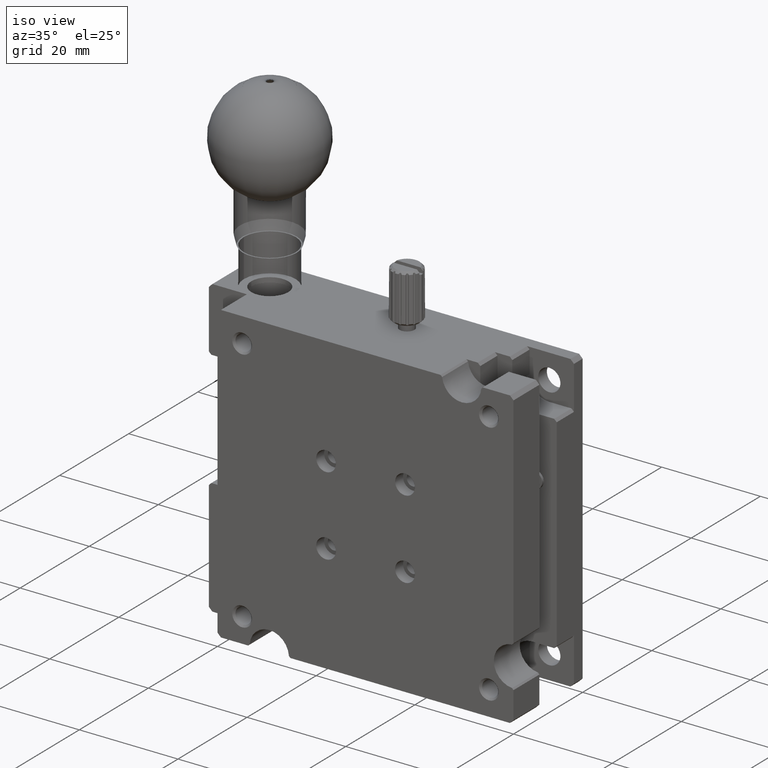
[diagram: clean part render]
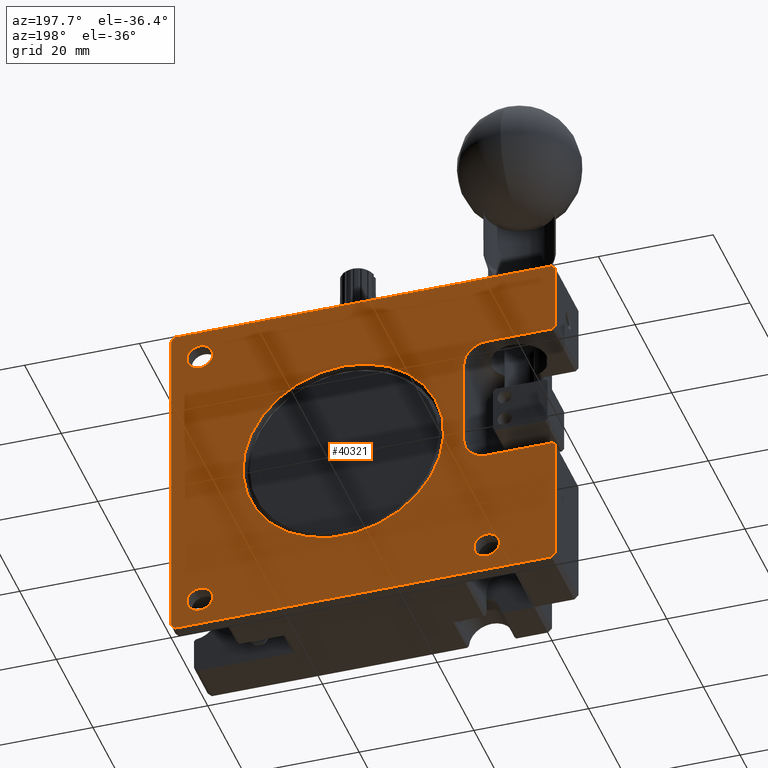
[diagram: tour spotlight — one face highlighted and labeled with its STEP entity id]
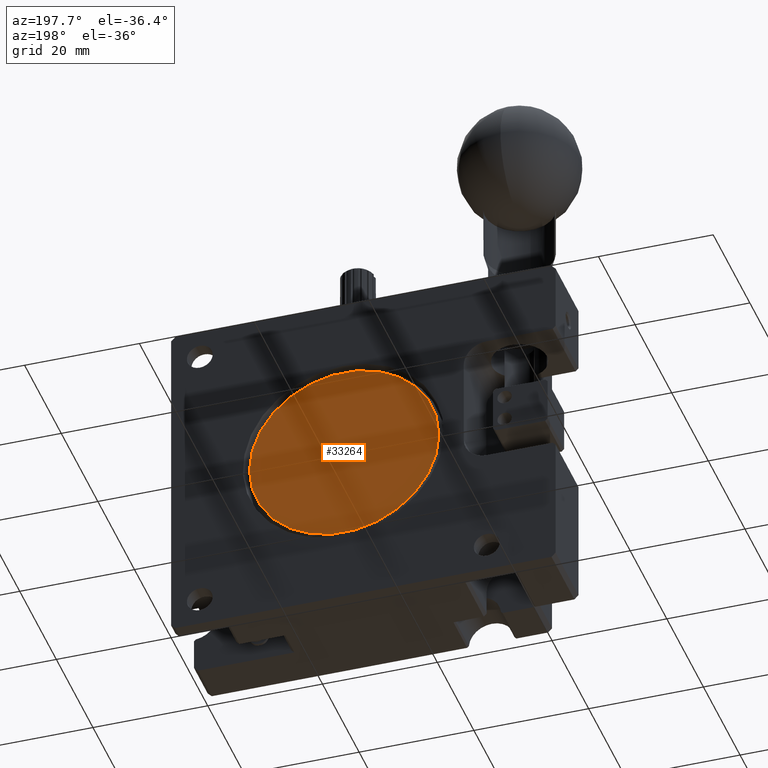
[diagram: tour spotlight — one face highlighted and labeled with its STEP entity id]
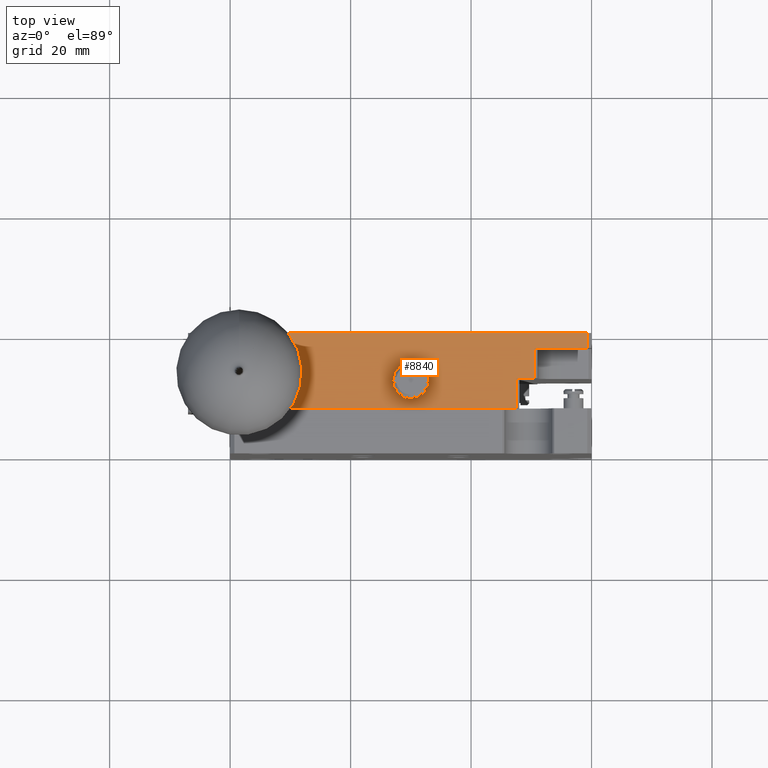
[diagram: tour spotlight — one face highlighted and labeled with its STEP entity id]
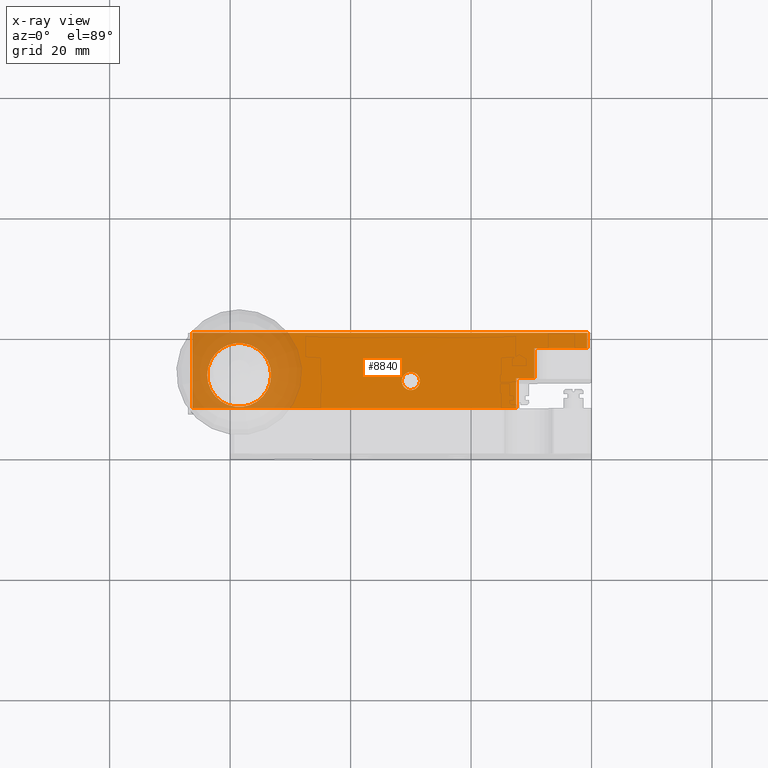
[diagram: x-ray of the same camera — body ghosted, this tour face saturated]
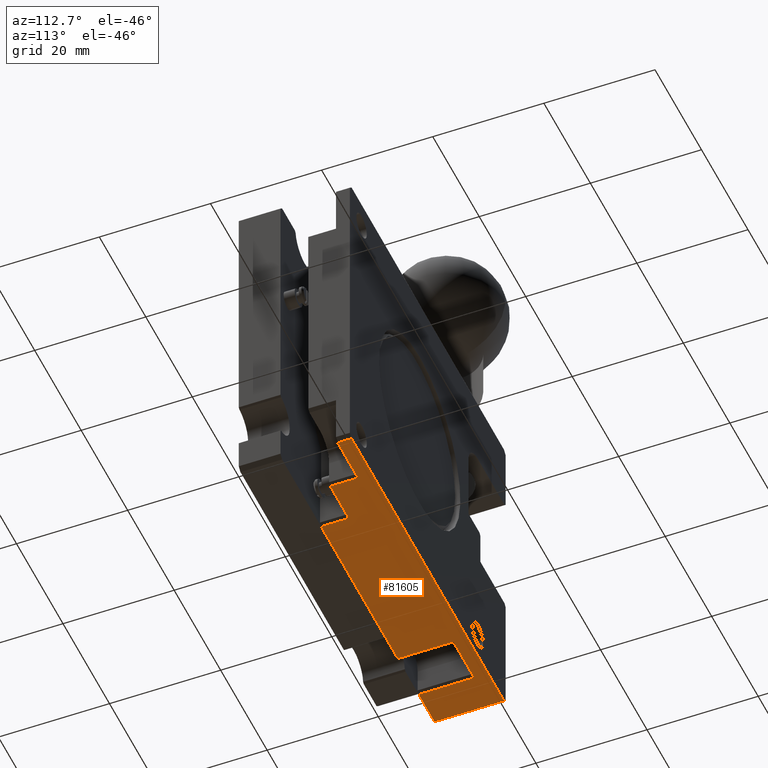
[diagram: tour spotlight — one face highlighted and labeled with its STEP entity id]
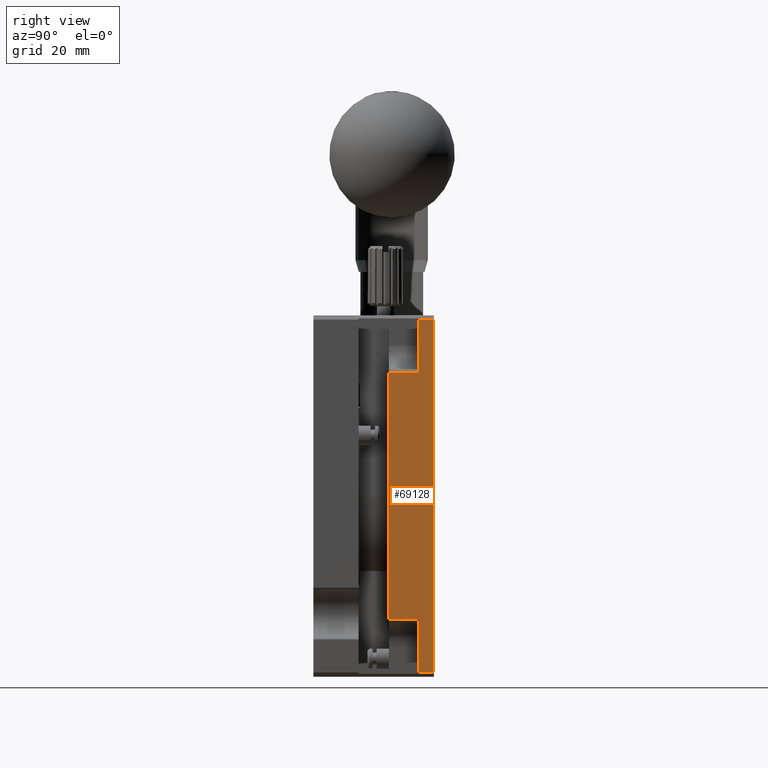
[diagram: tour spotlight — one face highlighted and labeled with its STEP entity id]
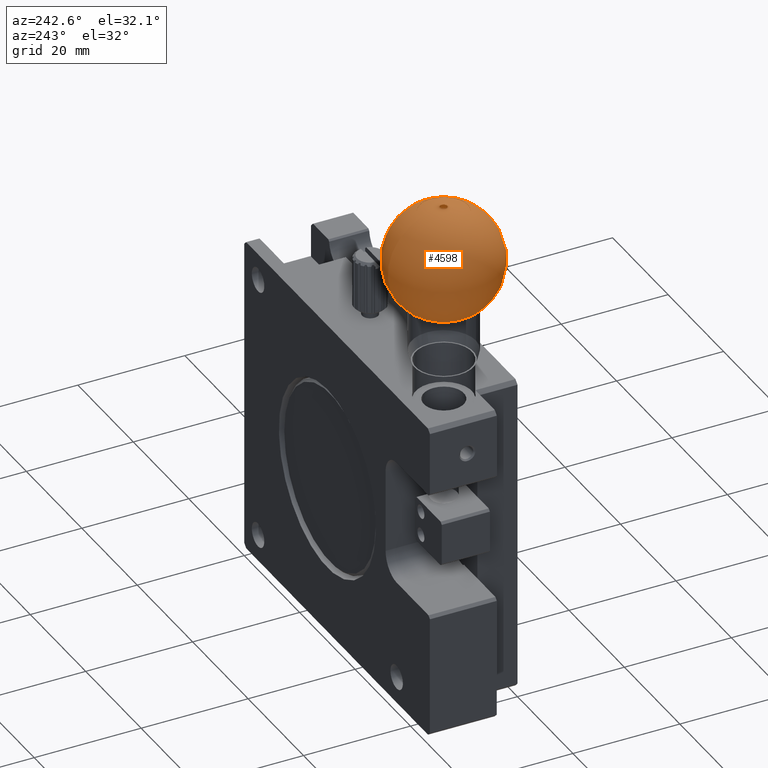
[diagram: tour spotlight — one face highlighted and labeled with its STEP entity id]
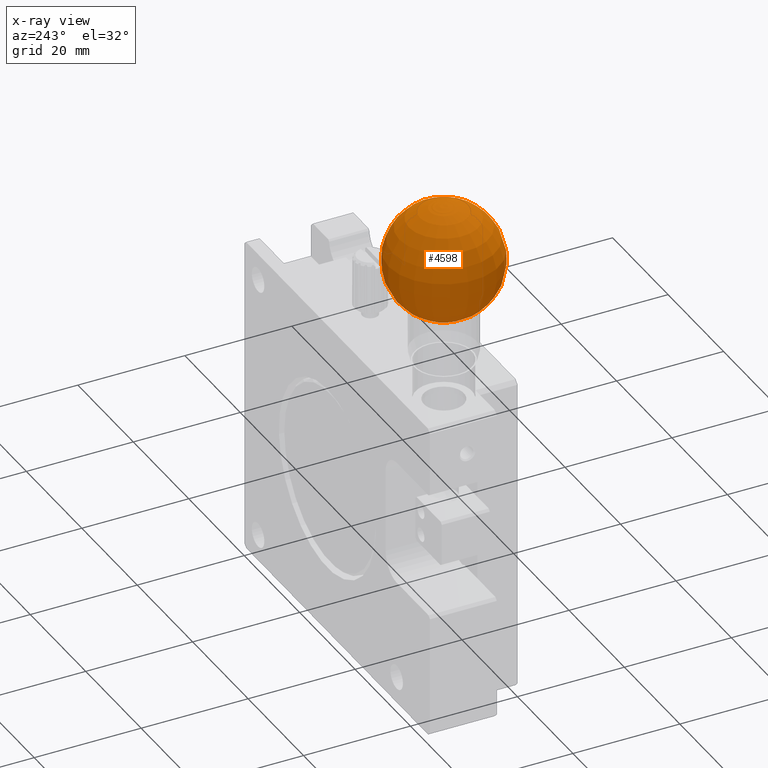
[diagram: x-ray of the same camera — body ghosted, this tour face saturated]
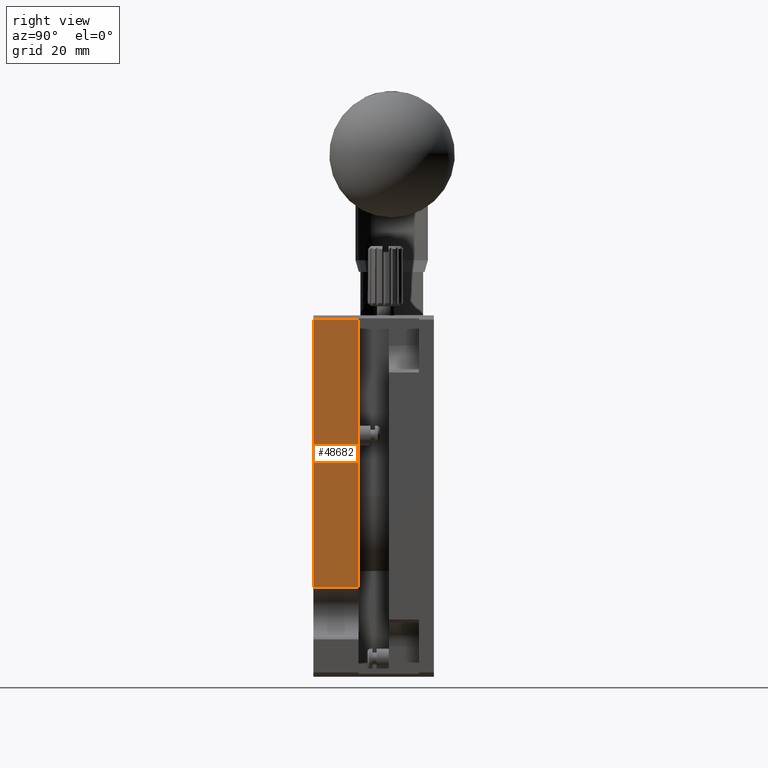
[diagram: tour spotlight — one face highlighted and labeled with its STEP entity id]
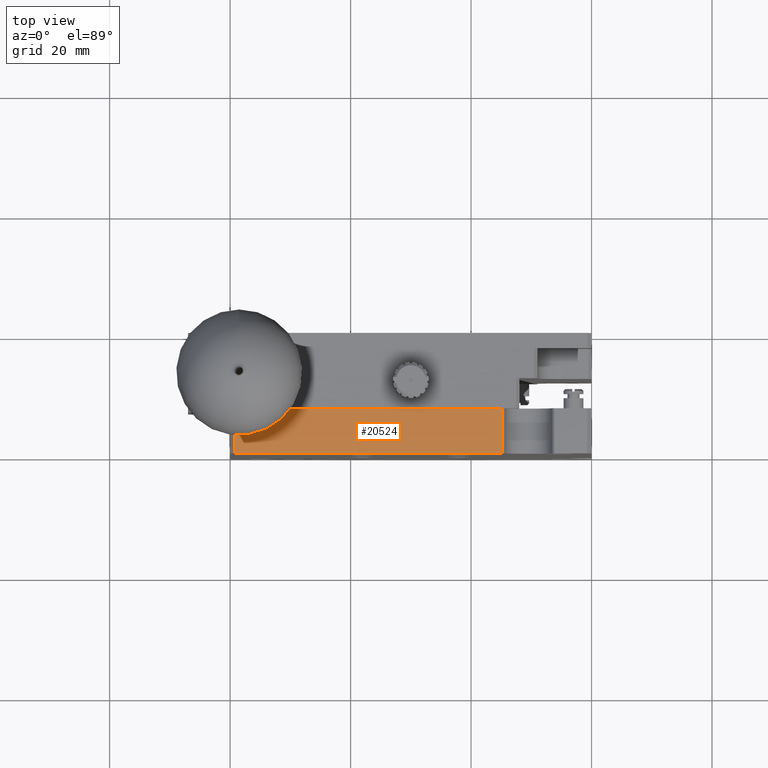
[diagram: tour spotlight — one face highlighted and labeled with its STEP entity id]
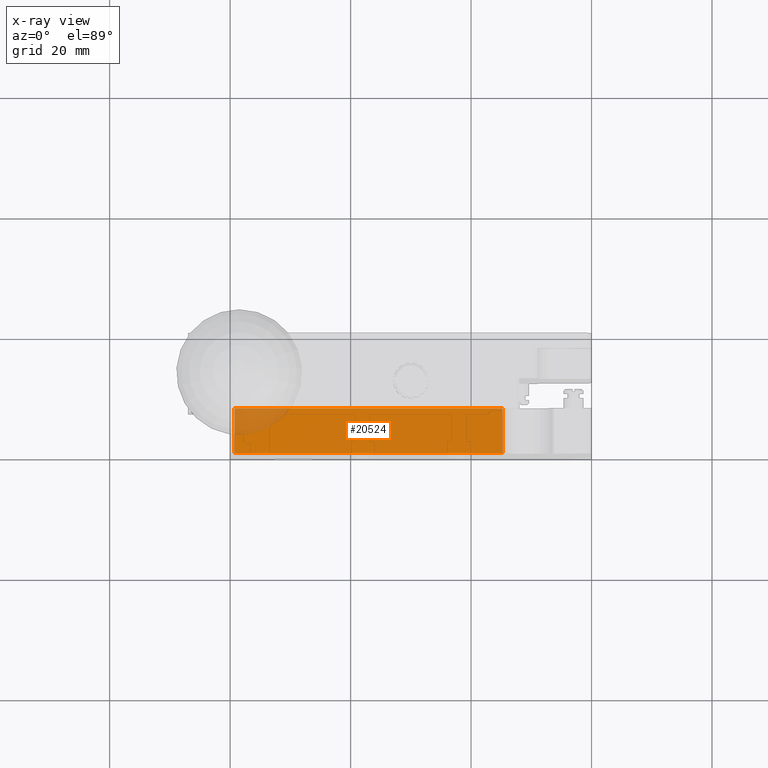
[diagram: x-ray of the same camera — body ghosted, this tour face saturated]
A machine part: a face-by-face anatomy tour. The part has 2142 B-rep faces; the first image is the clean iso view, then the 8 largest visible faces are spotlighted one at a time (largest first), each with its STEP entity span.

Face 1 — auxiliary view, entity #40321. In plain terms, the highlighted planar face has unit normal (0, 1, 0).
Definition (entity closure, byte-faithful):
#114 = CARTESIAN_POINT ( 'NONE',  ( 5.000000000000000000, 20.00000000000000000, -32.50000000000000000 ) ) ;
#859 = ORIENTED_EDGE ( 'NONE', *, *, #25022, .T. ) ;
#908 = CARTESIAN_POINT ( 'NONE',  ( 5.000000000000000000, 20.00000000000000000, -55.00000000000000000 ) ) ;
#1052 = ORIENTED_EDGE ( 'NONE', *, *, #2344, .T. ) ;
#1327 = LINE ( 'NONE', #1760, #39362 ) ;
#1531 = CARTESIAN_POINT ( 'NONE',  ( 5.000000000000000000, 20.00000000000000000, -57.25000000000000000 ) ) ;
#1760 = CARTESIAN_POINT ( 'NONE',  ( -7.000000000000000000, 20.00000000000000000, 0.000000000000000000 ) ) ;
#2344 = EDGE_CURVE ( 'NONE', #68070, #20030, #67847, .T. ) ;
#2633 = CARTESIAN_POINT ( 'NONE',  ( -7.000000000000001776, 20.00000000000000000, -12.50000000000000178 ) ) ;
#2667 = VERTEX_POINT ( 'NONE', #2633 ) ;
#2900 = VECTOR ( 'NONE', #77170, 1000.000000000000000 ) ;
#3404 = CARTESIAN_POINT ( 'NONE',  ( -7.000000000000002665, 20.00000000000000000, -12.50000000000000000 ) ) ;
#4015 = AXIS2_PLACEMENT_3D ( 'NONE', #74692, #27391, #80337 ) ;
#4030 = VERTEX_POINT ( 'NONE', #78001 ) ;
#4056 = CARTESIAN_POINT ( 'NONE',  ( 4.999540518334850248, 20.00000000000000000, -13.00000000000000178 ) ) ;
#4693 = DIRECTION ( 'NONE',  ( 0.7071067811865470176, -0.000000000000000000, -0.7071067811865480168 ) ) ;
#4835 = DIRECTION ( 'NONE',  ( 0.000000000000000000, -1.000000000000000000, 0.000000000000000000 ) ) ;
#5293 = ORIENTED_EDGE ( 'NONE', *, *, #33373, .F. ) ;
#5390 = CARTESIAN_POINT ( 'NONE',  ( -7.000000000000000888, 20.00000000000000000, -0.7100000000000020739 ) ) ;
#5965 = VERTEX_POINT ( 'NONE', #56280 ) ;
#6274 = EDGE_LOOP ( 'NONE', ( #83585 ) ) ;
#6280 = DIRECTION ( 'NONE',  ( -1.000000000000000000, -0.000000000000000000, 0.000000000000000000 ) ) ;
#6910 = VERTEX_POINT ( 'NONE', #58459 ) ;
#7269 = AXIS2_PLACEMENT_3D ( 'NONE', #114, #19589, #59142 ) ;
#8035 = VERTEX_POINT ( 'NONE', #21426 ) ;
#8195 = CIRCLE ( 'NONE', #19241, 2.250000000000001776 ) ;
#8428 = EDGE_LOOP ( 'NONE', ( #25567, #32929, #20987, #38699, #61127, #21178, #1052, #18520, #72539, #71450, #859, #35147, #59548, #5293, #21617, #32393, #58069 ) ) ;
#9070 = VECTOR ( 'NONE', #15295, 1000.000000000000000 ) ;
#9989 = EDGE_LOOP ( 'NONE', ( #65309 ) ) ;
#10888 = LINE ( 'NONE', #48680, #51478 ) ;
#12811 = CARTESIAN_POINT ( 'NONE',  ( 55.00000000000000000, 20.00000000000000000, -57.25000000000000000 ) ) ;
#13269 = CARTESIAN_POINT ( 'NONE',  ( -7.000000000000000000, 20.00000000000000000, 0.000000000000000000 ) ) ;
#14897 = VERTEX_POINT ( 'NONE', #5390 ) ;
#15295 = DIRECTION ( 'NONE',  ( 1.000000000000000000, 0.000000000000000000, -0.000000000000000000 ) ) ;
#15499 = VERTEX_POINT ( 'NONE', #52318 ) ;
#15771 = DIRECTION ( 'NONE',  ( -0.7071067811865470176, -0.000000000000000000, -0.7071067811865480168 ) ) ;
#16473 = VECTOR ( 'NONE', #73850, 999.9999999999998863 ) ;
#18520 = ORIENTED_EDGE ( 'NONE', *, *, #49088, .F. ) ;
#18586 = EDGE_CURVE ( 'NONE', #68070, #14897, #74426, .T. ) ;
#18644 = CIRCLE ( 'NONE', #39483, 17.50000000000000000 ) ;
#19159 = CARTESIAN_POINT ( 'NONE',  ( -7.000000000000000000, 20.00000000000000000, -59.28999999999999915 ) ) ;
#19241 = AXIS2_PLACEMENT_3D ( 'NONE', #908, #26905, #79851 ) ;
#19589 = DIRECTION ( 'NONE',  ( 0.000000000000000000, -1.000000000000000000, 0.000000000000000000 ) ) ;
#19661 = VECTOR ( 'NONE', #32526, 1000.000000000000000 ) ;
#19665 = CIRCLE ( 'NONE', #7269, 3.999999999999982681 ) ;
#19718 = AXIS2_PLACEMENT_3D ( 'NONE', #13269, #66245, #45871 ) ;
#19919 = VERTEX_POINT ( 'NONE', #46871 ) ;
#19966 = CIRCLE ( 'NONE', #68492, 4.000000000000010658 ) ;
#20030 = VERTEX_POINT ( 'NONE', #71929 ) ;
#20545 = DIRECTION ( 'NONE',  ( -1.000000000000000000, -0.000000000000000000, 0.000000000000000000 ) ) ;
#20614 = DIRECTION ( 'NONE',  ( -0.7071067811865470176, -0.000000000000000000, -0.7071067811865480168 ) ) ;
#20770 = VECTOR ( 'NONE', #4693, 1000.000000000000000 ) ;
#20987 = ORIENTED_EDGE ( 'NONE', *, *, #69388, .T. ) ;
#21001 = AXIS2_PLACEMENT_3D ( 'NONE', #40442, #57132, #53090 ) ;
#21178 = ORIENTED_EDGE ( 'NONE', *, *, #18586, .F. ) ;
#21426 = CARTESIAN_POINT ( 'NONE',  ( 55.00000000000000000, 20.00000000000000000, -7.250000000000009770 ) ) ;
#21617 = ORIENTED_EDGE ( 'NONE', *, *, #80650, .T. ) ;
#22123 = DIRECTION ( 'NONE',  ( 0.000000000000000000, 0.000000000000000000, -1.000000000000000000 ) ) ;
#22336 = VERTEX_POINT ( 'NONE', #19159 ) ;
#22355 = EDGE_CURVE ( 'NONE', #84409, #84409, #81618, .T. ) ;
#23328 = CARTESIAN_POINT ( 'NONE',  ( 9.000000000000001776, 20.00000000000000000, -17.00093953153909609 ) ) ;
#25022 = EDGE_CURVE ( 'NONE', #33111, #55700, #53169, .T. ) ;
#25567 = ORIENTED_EDGE ( 'NONE', *, *, #48643, .T. ) ;
#26355 = CARTESIAN_POINT ( 'NONE',  ( 59.28999999999999915, 20.00000000000000000, -60.00000000000000000 ) ) ;
#26905 = DIRECTION ( 'NONE',  ( 0.000000000000000000, -1.000000000000000000, 0.000000000000000000 ) ) ;
#27140 = FACE_BOUND ( 'NONE', #85768, .T. ) ;
#27391 = DIRECTION ( 'NONE',  ( 0.000000000000000000, -1.000000000000000000, 0.000000000000000000 ) ) ;
#28401 = EDGE_CURVE ( 'NONE', #4030, #6910, #57659, .T. ) ;
#29752 = DIRECTION ( 'NONE',  ( -0.7071067811865489050, -0.000000000000000000, 0.7071067811865460184 ) ) ;
#30245 = LINE ( 'NONE', #43743, #20770 ) ;
#32393 = ORIENTED_EDGE ( 'NONE', *, *, #39051, .T. ) ;
#32526 = DIRECTION ( 'NONE',  ( 0.000000000000000000, -0.000000000000000000, 1.000000000000000000 ) ) ;
#32781 = FACE_BOUND ( 'NONE', #9989, .T. ) ;
#32929 = ORIENTED_EDGE ( 'NONE', *, *, #85209, .T. ) ;
#33111 = VERTEX_POINT ( 'NONE', #26355 ) ;
#33373 = EDGE_CURVE ( 'NONE', #76798, #5965, #69168, .T. ) ;
#33633 = CARTESIAN_POINT ( 'NONE',  ( -7.000000000000000000, 20.00000000000000000, -0.7100000000000009637 ) ) ;
#34028 = VERTEX_POINT ( 'NONE', #1531 ) ;
#35147 = ORIENTED_EDGE ( 'NONE', *, *, #75908, .F. ) ;
#36506 = ORIENTED_EDGE ( 'NONE', *, *, #22355, .T. ) ;
#36781 = LINE ( 'NONE', #40435, #16473 ) ;
#36785 = LINE ( 'NONE', #3404, #45616 ) ;
#37333 = DIRECTION ( 'NONE',  ( 0.000000000000000000, -0.000000000000000000, 1.000000000000000000 ) ) ;
#37819 = CARTESIAN_POINT ( 'NONE',  ( -6.290000000000000036, 20.00000000000000000, -5.416677968589100837E-32 ) ) ;
#38699 = ORIENTED_EDGE ( 'NONE', *, *, #61740, .F. ) ;
#39051 = EDGE_CURVE ( 'NONE', #15499, #83159, #19665, .T. ) ;
#39317 = FACE_OUTER_BOUND ( 'NONE', #8428, .T. ) ;
#39348 = ORIENTED_EDGE ( 'NONE', *, *, #63761, .T. ) ;
#39362 = VECTOR ( 'NONE', #48599, 1000.000000000000000 ) ;
#39483 = AXIS2_PLACEMENT_3D ( 'NONE', #67066, #52361, #53638 ) ;
#40017 = VECTOR ( 'NONE', #59369, 1000.000000000000000 ) ;
#40321 = ADVANCED_FACE ( 'NONE', ( #39317, #85744, #59743, #27140, #32781 ), #72750, .T. ) ;
#40435 = CARTESIAN_POINT ( 'NONE',  ( 60.00000000000000711, 20.00000000000000000, -59.28999999999999915 ) ) ;
#40442 = CARTESIAN_POINT ( 'NONE',  ( 4.999540524786701745, 20.00000000000000000, -17.00000000000000000 ) ) ;
#41427 = CIRCLE ( 'NONE', #4015, 2.250000000000000444 ) ;
#42148 = VECTOR ( 'NONE', #29752, 1000.000000000000114 ) ;
#42812 = CARTESIAN_POINT ( 'NONE',  ( 8.593000000262824400, 20.00000000000000000, -15.24300000053760407 ) ) ;
#43743 = CARTESIAN_POINT ( 'NONE',  ( -6.290000000000006253, 20.00000000000000000, -60.00000000000000000 ) ) ;
#44130 = CARTESIAN_POINT ( 'NONE',  ( 59.28999999999999915, 20.00000000000000000, 0.000000000000000000 ) ) ;
#45616 = VECTOR ( 'NONE', #76276, 1000.000000000000000 ) ;
#45871 = DIRECTION ( 'NONE',  ( 0.000000000000000000, -0.000000000000000000, 1.000000000000000000 ) ) ;
#46462 = CARTESIAN_POINT ( 'NONE',  ( 9.000000000000001776, 20.00000000000000000, -32.50000000000000000 ) ) ;
#46871 = CARTESIAN_POINT ( 'NONE',  ( -6.500000000000003553, 20.00000000000000000, -13.00000000000000355 ) ) ;
#48232 = CARTESIAN_POINT ( 'NONE',  ( 55.00000000000000000, 20.00000000000000000, -55.00000000000000000 ) ) ;
#48599 = DIRECTION ( 'NONE',  ( 0.000000000000000000, -0.000000000000000000, 1.000000000000000000 ) ) ;
#48643 = EDGE_CURVE ( 'NONE', #80656, #57951, #19966, .T. ) ;
#48680 = CARTESIAN_POINT ( 'NONE',  ( -7.000000000000002665, 20.00000000000000000, 0.000000000000000000 ) ) ;
#49088 = EDGE_CURVE ( 'NONE', #4030, #20030, #77083, .T. ) ;
#49891 = VECTOR ( 'NONE', #15771, 1000.000000000000000 ) ;
#50317 = CARTESIAN_POINT ( 'NONE',  ( -7.000000000000000000, 20.00000000000000000, -36.50000000000000000 ) ) ;
#50931 = EDGE_CURVE ( 'NONE', #22336, #5965, #1327, .T. ) ;
#50992 = LINE ( 'NONE', #65728, #55267 ) ;
#51478 = VECTOR ( 'NONE', #37333, 1000.000000000000000 ) ;
#52112 = LINE ( 'NONE', #78548, #19661 ) ;
#52318 = CARTESIAN_POINT ( 'NONE',  ( 5.000000000000000000, 20.00000000000000000, -36.49999999999999289 ) ) ;
#52361 = DIRECTION ( 'NONE',  ( -0.000000000000000000, -1.000000000000000000, -0.000000000000000000 ) ) ;
#52925 = EDGE_CURVE ( 'NONE', #61385, #61385, #18644, .T. ) ;
#53090 = DIRECTION ( 'NONE',  ( 0.000000000000000000, 0.000000000000000000, -1.000000000000000000 ) ) ;
#53169 = LINE ( 'NONE', #79598, #69207 ) ;
#53638 = DIRECTION ( 'NONE',  ( 0.000000000000000000, 0.000000000000000000, 1.000000000000000000 ) ) ;
#54470 = CARTESIAN_POINT ( 'NONE',  ( -6.290000000000008917, 20.00000000000000000, -60.00000000000000000 ) ) ;
#55267 = VECTOR ( 'NONE', #6280, 1000.000000000000000 ) ;
#55591 = DIRECTION ( 'NONE',  ( 0.000000000000000000, -1.000000000000000000, 0.000000000000000000 ) ) ;
#55700 = VERTEX_POINT ( 'NONE', #54470 ) ;
#56280 = CARTESIAN_POINT ( 'NONE',  ( -7.000000000000001776, 20.00000000000000000, -37.00000000000000000 ) ) ;
#57132 = DIRECTION ( 'NONE',  ( 0.000000000000000000, -1.000000000000000000, 0.000000000000000000 ) ) ;
#57659 = LINE ( 'NONE', #84060, #40017 ) ;
#57951 = VERTEX_POINT ( 'NONE', #42812 ) ;
#58069 = ORIENTED_EDGE ( 'NONE', *, *, #85428, .T. ) ;
#58459 = CARTESIAN_POINT ( 'NONE',  ( 60.00000000000000711, 20.00000000000000000, -59.29000000000000625 ) ) ;
#59142 = DIRECTION ( 'NONE',  ( 0.000000000000000000, 0.000000000000000000, -1.000000000000000000 ) ) ;
#59369 = DIRECTION ( 'NONE',  ( -0.000000000000000000, 0.000000000000000000, -1.000000000000000000 ) ) ;
#59548 = ORIENTED_EDGE ( 'NONE', *, *, #50931, .T. ) ;
#59743 = FACE_BOUND ( 'NONE', #77118, .T. ) ;
#61127 = ORIENTED_EDGE ( 'NONE', *, *, #83002, .T. ) ;
#61385 = VERTEX_POINT ( 'NONE', #79628 ) ;
#61740 = EDGE_CURVE ( 'NONE', #2667, #19919, #36785, .T. ) ;
#63761 = EDGE_CURVE ( 'NONE', #34028, #34028, #8195, .T. ) ;
#64725 = CARTESIAN_POINT ( 'NONE',  ( 5.000000000000000000, 20.00000000000000000, -17.00093941875219983 ) ) ;
#65196 = VERTEX_POINT ( 'NONE', #4056 ) ;
#65309 = ORIENTED_EDGE ( 'NONE', *, *, #52925, .T. ) ;
#65428 = CIRCLE ( 'NONE', #21001, 4.000000000000000000 ) ;
#65728 = CARTESIAN_POINT ( 'NONE',  ( -7.000000000000000000, 20.00000000000000000, -13.00000000000000178 ) ) ;
#66245 = DIRECTION ( 'NONE',  ( 0.000000000000000000, 1.000000000000000000, 0.000000000000000000 ) ) ;
#67066 = CARTESIAN_POINT ( 'NONE',  ( 30.00000000000000000, 20.00000000000000000, -30.00000000000000000 ) ) ;
#67419 = CARTESIAN_POINT ( 'NONE',  ( -7.000000000000000000, 20.00000000000000000, 1.084202172485499997E-16 ) ) ;
#67847 = LINE ( 'NONE', #67419, #9070 ) ;
#68070 = VERTEX_POINT ( 'NONE', #37819 ) ;
#68492 = AXIS2_PLACEMENT_3D ( 'NONE', #64725, #4835, #76848 ) ;
#69168 = LINE ( 'NONE', #80892, #49891 ) ;
#69207 = VECTOR ( 'NONE', #20545, 1000.000000000000000 ) ;
#69388 = EDGE_CURVE ( 'NONE', #65196, #19919, #50992, .T. ) ;
#69783 = CARTESIAN_POINT ( 'NONE',  ( -6.500000000000002665, 20.00000000000000000, -36.50000000000000000 ) ) ;
#71450 = ORIENTED_EDGE ( 'NONE', *, *, #72589, .F. ) ;
#71929 = CARTESIAN_POINT ( 'NONE',  ( 59.28999999999999204, 20.00000000000000000, 1.755052266710910697E-15 ) ) ;
#72539 = ORIENTED_EDGE ( 'NONE', *, *, #28401, .T. ) ;
#72589 = EDGE_CURVE ( 'NONE', #33111, #6910, #36781, .T. ) ;
#72643 = EDGE_CURVE ( 'NONE', #8035, #8035, #41427, .T. ) ;
#72750 = PLANE ( 'NONE',  #19718 ) ;
#73850 = DIRECTION ( 'NONE',  ( 0.7071067811865510144, -0.000000000000000000, 0.7071067811865441310 ) ) ;
#74426 = LINE ( 'NONE', #33633, #85747 ) ;
#74692 = CARTESIAN_POINT ( 'NONE',  ( 55.00000000000000000, 20.00000000000000000, -5.000000000000009770 ) ) ;
#75908 = EDGE_CURVE ( 'NONE', #22336, #55700, #30245, .T. ) ;
#76276 = DIRECTION ( 'NONE',  ( 0.7071067811865470176, -0.000000000000000000, -0.7071067811865480168 ) ) ;
#76798 = VERTEX_POINT ( 'NONE', #69783 ) ;
#76848 = DIRECTION ( 'NONE',  ( 0.000000000000000000, 0.000000000000000000, -1.000000000000000000 ) ) ;
#77083 = LINE ( 'NONE', #44130, #42148 ) ;
#77118 = EDGE_LOOP ( 'NONE', ( #36506 ) ) ;
#77170 = DIRECTION ( 'NONE',  ( 1.000000000000000000, 0.000000000000000000, -0.000000000000000000 ) ) ;
#78001 = CARTESIAN_POINT ( 'NONE',  ( 60.00000000000000711, 20.00000000000000000, -0.7099999999999997424 ) ) ;
#78548 = CARTESIAN_POINT ( 'NONE',  ( 9.000000000000001776, 20.00000000000000000, 0.000000000000000000 ) ) ;
#79598 = CARTESIAN_POINT ( 'NONE',  ( -7.000000000000000000, 20.00000000000000000, -60.00000000000000000 ) ) ;
#79628 = CARTESIAN_POINT ( 'NONE',  ( 30.00000000000000000, 20.00000000000000000, -12.49999999999999645 ) ) ;
#79851 = DIRECTION ( 'NONE',  ( 0.000000000000000000, 0.000000000000000000, -1.000000000000000000 ) ) ;
#80218 = AXIS2_PLACEMENT_3D ( 'NONE', #48232, #55591, #22123 ) ;
#80337 = DIRECTION ( 'NONE',  ( 0.000000000000000000, 0.000000000000000000, -1.000000000000000000 ) ) ;
#80650 = EDGE_CURVE ( 'NONE', #76798, #15499, #82762, .T. ) ;
#80656 = VERTEX_POINT ( 'NONE', #23328 ) ;
#80892 = CARTESIAN_POINT ( 'NONE',  ( -6.500000000000002665, 20.00000000000000000, -36.50000000000000000 ) ) ;
#81618 = CIRCLE ( 'NONE', #80218, 2.250000000000001776 ) ;
#82762 = LINE ( 'NONE', #50317, #2900 ) ;
#83002 = EDGE_CURVE ( 'NONE', #2667, #14897, #10888, .T. ) ;
#83159 = VERTEX_POINT ( 'NONE', #46462 ) ;
#83585 = ORIENTED_EDGE ( 'NONE', *, *, #72643, .T. ) ;
#84060 = CARTESIAN_POINT ( 'NONE',  ( 60.00000000000000711, 20.00000000000000000, 0.000000000000000000 ) ) ;
#84409 = VERTEX_POINT ( 'NONE', #12811 ) ;
#85209 = EDGE_CURVE ( 'NONE', #57951, #65196, #65428, .T. ) ;
#85428 = EDGE_CURVE ( 'NONE', #83159, #80656, #52112, .T. ) ;
#85744 = FACE_BOUND ( 'NONE', #6274, .T. ) ;
#85747 = VECTOR ( 'NONE', #20614, 1000.000000000000000 ) ;
#85768 = EDGE_LOOP ( 'NONE', ( #39348 ) ) ;

Face 2 — auxiliary view, entity #33264. In plain terms, the highlighted planar face has unit normal (-0, -1, 0).
Definition (entity closure, byte-faithful):
#9446 = ORIENTED_EDGE ( 'NONE', *, *, #37380, .F. ) ;
#13823 = AXIS2_PLACEMENT_3D ( 'NONE', #64504, #31449, #77917 ) ;
#16655 = DIRECTION ( 'NONE',  ( 1.000000000000000000, -4.205390244792255888E-16, 0.000000000000000000 ) ) ;
#25227 = AXIS2_PLACEMENT_3D ( 'NONE', #55777, #75681, #16655 ) ;
#31449 = DIRECTION ( 'NONE',  ( -3.469446951953610245E-16, -1.000000000000000000, 0.000000000000000000 ) ) ;
#33264 = ADVANCED_FACE ( 'NONE', ( #83093 ), #64919, .F. ) ;
#34848 = EDGE_LOOP ( 'NONE', ( #9446 ) ) ;
#37380 = EDGE_CURVE ( 'NONE', #58855, #58855, #48761, .T. ) ;
#48761 = CIRCLE ( 'NONE', #25227, 16.50000000000001421 ) ;
#55777 = CARTESIAN_POINT ( 'NONE',  ( 30.00000000000000000, 19.49999999999999289, -30.00000000000000000 ) ) ;
#58855 = VERTEX_POINT ( 'NONE', #85268 ) ;
#64504 = CARTESIAN_POINT ( 'NONE',  ( 13.50000000000000000, 19.50000000000000000, -30.00000000000000000 ) ) ;
#64919 = PLANE ( 'NONE',  #13823 ) ;
#75681 = DIRECTION ( 'NONE',  ( -4.081702296416016490E-16, -1.000000000000000000, 0.000000000000000000 ) ) ;
#77917 = DIRECTION ( 'NONE',  ( 1.000000000000000000, -3.469446951953610245E-16, 0.000000000000000000 ) ) ;
#83093 = FACE_OUTER_BOUND ( 'NONE', #34848, .T. ) ;
#85268 = CARTESIAN_POINT ( 'NONE',  ( 46.50000000000001421, 19.49999999999998579, -30.00000000000000000 ) ) ;

Face 3 — top view, entity #8840. An x-ray twin of the same camera follows (body ghosted, this face saturated) — the face is partly hidden behind the body. In plain terms, the highlighted planar face has unit normal (0, 0, 1).
Definition (entity closure, byte-faithful):
#1118 = LINE ( 'NONE', #27543, #9934 ) ;
#1955 = VERTEX_POINT ( 'NONE', #66202 ) ;
#2214 = VECTOR ( 'NONE', #49974, 1000.000000000000000 ) ;
#2344 = EDGE_CURVE ( 'NONE', #68070, #20030, #67847, .T. ) ;
#3240 = DIRECTION ( 'NONE',  ( -0.000000000000000000, 1.000000000000000000, 0.000000000000000000 ) ) ;
#3474 = ORIENTED_EDGE ( 'NONE', *, *, #55545, .T. ) ;
#3918 = VECTOR ( 'NONE', #8858, 1000.000000000000000 ) ;
#3952 = LINE ( 'NONE', #30373, #2214 ) ;
#4559 = EDGE_LOOP ( 'NONE', ( #39995, #16682, #50893, #6625, #10868, #73074, #77558, #7901 ) ) ;
#4702 = LINE ( 'NONE', #59694, #33134 ) ;
#5469 = EDGE_CURVE ( 'NONE', #81459, #20030, #3952, .T. ) ;
#6625 = ORIENTED_EDGE ( 'NONE', *, *, #36609, .T. ) ;
#6677 = CARTESIAN_POINT ( 'NONE',  ( 30.00000000000000000, 12.00000000000000000, 0.000000000000000000 ) ) ;
#7901 = ORIENTED_EDGE ( 'NONE', *, *, #79169, .T. ) ;
#8275 = CIRCLE ( 'NONE', #11051, 1.500000000000001332 ) ;
#8840 = ADVANCED_FACE ( 'NONE', ( #56131, #82520, #76483 ), #16582, .T. ) ;
#8858 = DIRECTION ( 'NONE',  ( -0.000000000000000000, 1.000000000000000000, 0.000000000000000000 ) ) ;
#9070 = VECTOR ( 'NONE', #15295, 1000.000000000000000 ) ;
#9934 = VECTOR ( 'NONE', #3240, 1000.000000000000000 ) ;
#10868 = ORIENTED_EDGE ( 'NONE', *, *, #83396, .T. ) ;
#10893 = CARTESIAN_POINT ( 'NONE',  ( 50.50000000000000711, 12.50000000000000000, -3.937009138837987187E-15 ) ) ;
#11051 = AXIS2_PLACEMENT_3D ( 'NONE', #6677, #78689, #39617 ) ;
#13564 = DIRECTION ( 'NONE',  ( 1.000000000000000000, 0.000000000000000000, -0.000000000000000000 ) ) ;
#15295 = DIRECTION ( 'NONE',  ( 1.000000000000000000, 0.000000000000000000, -0.000000000000000000 ) ) ;
#15640 = EDGE_LOOP ( 'NONE', ( #3474 ) ) ;
#15793 = CIRCLE ( 'NONE', #71273, 5.299999999999999822 ) ;
#16582 = PLANE ( 'NONE',  #36908 ) ;
#16682 = ORIENTED_EDGE ( 'NONE', *, *, #24139, .T. ) ;
#17448 = DIRECTION ( 'NONE',  ( 1.000000000000000000, 0.000000000000000000, -0.000000000000000000 ) ) ;
#20030 = VERTEX_POINT ( 'NONE', #71929 ) ;
#20268 = LINE ( 'NONE', #46784, #57071 ) ;
#22198 = EDGE_CURVE ( 'NONE', #44392, #68591, #4702, .T. ) ;
#23270 = EDGE_CURVE ( 'NONE', #36317, #74770, #83444, .T. ) ;
#23280 = ORIENTED_EDGE ( 'NONE', *, *, #29698, .T. ) ;
#24139 = EDGE_CURVE ( 'NONE', #68591, #36317, #47512, .T. ) ;
#24939 = CARTESIAN_POINT ( 'NONE',  ( 31.50000000000000000, 12.00000000000000000, 0.000000000000000000 ) ) ;
#27543 = CARTESIAN_POINT ( 'NONE',  ( 50.50000000000000000, 7.500000000000000000, 0.000000000000000000 ) ) ;
#29698 = EDGE_CURVE ( 'NONE', #57995, #57995, #8275, .T. ) ;
#30373 = CARTESIAN_POINT ( 'NONE',  ( 59.28999999999999915, 7.500000000000000000, 0.000000000000000000 ) ) ;
#31485 = LINE ( 'NONE', #58037, #83178 ) ;
#33134 = VECTOR ( 'NONE', #67045, 1000.000000000000000 ) ;
#34369 = CARTESIAN_POINT ( 'NONE',  ( -6.290000000000000036, 12.50000000000000000, 0.000000000000000000 ) ) ;
#36317 = VERTEX_POINT ( 'NONE', #68438 ) ;
#36609 = EDGE_CURVE ( 'NONE', #74770, #78402, #1118, .T. ) ;
#36908 = AXIS2_PLACEMENT_3D ( 'NONE', #50055, #64364, #17448 ) ;
#37819 = CARTESIAN_POINT ( 'NONE',  ( -6.290000000000000036, 20.00000000000000000, -5.416677968589100837E-32 ) ) ;
#39617 = DIRECTION ( 'NONE',  ( 1.000000000000000000, 0.000000000000000000, 0.000000000000000000 ) ) ;
#39995 = ORIENTED_EDGE ( 'NONE', *, *, #22198, .T. ) ;
#41088 = DIRECTION ( 'NONE',  ( 1.000000000000000000, 0.000000000000000000, -0.000000000000000000 ) ) ;
#41400 = CARTESIAN_POINT ( 'NONE',  ( 47.50000000000000000, 7.500000000000000000, 0.000000000000000000 ) ) ;
#44392 = VERTEX_POINT ( 'NONE', #63535 ) ;
#44964 = DIRECTION ( 'NONE',  ( -0.000000000000000000, -0.000000000000000000, -1.000000000000000000 ) ) ;
#46784 = CARTESIAN_POINT ( 'NONE',  ( -6.290000000000000036, 17.50000000000000000, 0.000000000000000000 ) ) ;
#47512 = LINE ( 'NONE', #41400, #3918 ) ;
#49974 = DIRECTION ( 'NONE',  ( -0.000000000000000000, 1.000000000000000000, 0.000000000000000000 ) ) ;
#50055 = CARTESIAN_POINT ( 'NONE',  ( -6.290000000000000036, 7.500000000000000000, 0.000000000000000000 ) ) ;
#50236 = DIRECTION ( 'NONE',  ( 0.000000000000000000, -1.000000000000000000, -0.000000000000000000 ) ) ;
#50619 = CARTESIAN_POINT ( 'NONE',  ( 1.500000000000000444, 13.00000000000000178, 0.000000000000000000 ) ) ;
#50893 = ORIENTED_EDGE ( 'NONE', *, *, #23270, .T. ) ;
#55545 = EDGE_CURVE ( 'NONE', #1955, #1955, #15793, .T. ) ;
#56131 = FACE_OUTER_BOUND ( 'NONE', #4559, .T. ) ;
#57071 = VECTOR ( 'NONE', #41088, 1000.000000000000000 ) ;
#57995 = VERTEX_POINT ( 'NONE', #24939 ) ;
#58037 = CARTESIAN_POINT ( 'NONE',  ( -6.290000000000000036, 7.500000000000000000, 0.000000000000000000 ) ) ;
#59694 = CARTESIAN_POINT ( 'NONE',  ( -6.290000000000000036, 7.500000000000000000, 0.000000000000000000 ) ) ;
#63535 = CARTESIAN_POINT ( 'NONE',  ( -6.290000000000000036, 7.500000000000000000, -5.416677968589100837E-32 ) ) ;
#64364 = DIRECTION ( 'NONE',  ( 0.000000000000000000, 0.000000000000000000, 1.000000000000000000 ) ) ;
#64499 = DIRECTION ( 'NONE',  ( 1.000000000000000000, 0.000000000000000000, 0.000000000000000000 ) ) ;
#64645 = CARTESIAN_POINT ( 'NONE',  ( 59.28999999999999915, 17.50000000000000000, -8.673617379884120275E-16 ) ) ;
#66202 = CARTESIAN_POINT ( 'NONE',  ( 6.800000000000000711, 13.00000000000000178, 0.000000000000000000 ) ) ;
#67045 = DIRECTION ( 'NONE',  ( 1.000000000000000000, 0.000000000000000000, -0.000000000000000000 ) ) ;
#67419 = CARTESIAN_POINT ( 'NONE',  ( -7.000000000000000000, 20.00000000000000000, 1.084202172485499997E-16 ) ) ;
#67847 = LINE ( 'NONE', #67419, #9070 ) ;
#68070 = VERTEX_POINT ( 'NONE', #37819 ) ;
#68438 = CARTESIAN_POINT ( 'NONE',  ( 47.50000000000000000, 12.50000000000000000, -1.355252715606880543E-17 ) ) ;
#68591 = VERTEX_POINT ( 'NONE', #83302 ) ;
#71273 = AXIS2_PLACEMENT_3D ( 'NONE', #50619, #44964, #64499 ) ;
#71929 = CARTESIAN_POINT ( 'NONE',  ( 59.28999999999999204, 20.00000000000000000, 1.755052266710910697E-15 ) ) ;
#73074 = ORIENTED_EDGE ( 'NONE', *, *, #5469, .T. ) ;
#73374 = VECTOR ( 'NONE', #13564, 1000.000000000000000 ) ;
#74031 = EDGE_LOOP ( 'NONE', ( #23280 ) ) ;
#74770 = VERTEX_POINT ( 'NONE', #10893 ) ;
#76483 = FACE_BOUND ( 'NONE', #74031, .T. ) ;
#77558 = ORIENTED_EDGE ( 'NONE', *, *, #2344, .F. ) ;
#78402 = VERTEX_POINT ( 'NONE', #82373 ) ;
#78689 = DIRECTION ( 'NONE',  ( -0.000000000000000000, -0.000000000000000000, -1.000000000000000000 ) ) ;
#79169 = EDGE_CURVE ( 'NONE', #68070, #44392, #31485, .T. ) ;
#81459 = VERTEX_POINT ( 'NONE', #64645 ) ;
#82373 = CARTESIAN_POINT ( 'NONE',  ( 50.50000000000000000, 17.50000000000000000, -1.761828530288944705E-16 ) ) ;
#82520 = FACE_BOUND ( 'NONE', #15640, .T. ) ;
#83178 = VECTOR ( 'NONE', #50236, 1000.000000000000000 ) ;
#83302 = CARTESIAN_POINT ( 'NONE',  ( 47.50000000000000000, 7.500000000000000000, -1.355252715606888400E-17 ) ) ;
#83396 = EDGE_CURVE ( 'NONE', #78402, #81459, #20268, .T. ) ;
#83444 = LINE ( 'NONE', #34369, #73374 ) ;

Face 4 — auxiliary view, entity #81605. In plain terms, the highlighted planar face has unit normal (0, 0, -1).
Definition (entity closure, byte-faithful):
#265 = VECTOR ( 'NONE', #47556, 1000.000000000000000 ) ;
#949 = VERTEX_POINT ( 'NONE', #34490 ) ;
#3632 = DIRECTION ( 'NONE',  ( 0.000000000000000000, 1.000000000000000000, 0.000000000000000000 ) ) ;
#4995 = ORIENTED_EDGE ( 'NONE', *, *, #59226, .T. ) ;
#5691 = VECTOR ( 'NONE', #8056, 1000.000000000000000 ) ;
#6348 = LINE ( 'NONE', #32326, #12316 ) ;
#6723 = LINE ( 'NONE', #33124, #65547 ) ;
#8056 = DIRECTION ( 'NONE',  ( -1.000000000000000000, 0.000000000000000000, -0.000000000000000000 ) ) ;
#8234 = LINE ( 'NONE', #35085, #29287 ) ;
#8545 = VERTEX_POINT ( 'NONE', #58540 ) ;
#8592 = CARTESIAN_POINT ( 'NONE',  ( 59.28999999999999915, 7.500000000000000000, -60.00000000000000000 ) ) ;
#11389 = EDGE_LOOP ( 'NONE', ( #71797, #40839, #45466, #58609, #14241, #4995, #39746, #26432, #48530, #16031, #46315, #16349 ) ) ;
#11422 = CARTESIAN_POINT ( 'NONE',  ( 9.500000000000001776, 7.500000000000000000, -60.00000000000000000 ) ) ;
#12316 = VECTOR ( 'NONE', #51915, 1000.000000000000000 ) ;
#12765 = VERTEX_POINT ( 'NONE', #48505 ) ;
#13634 = VECTOR ( 'NONE', #45946, 1000.000000000000000 ) ;
#14241 = ORIENTED_EDGE ( 'NONE', *, *, #63130, .T. ) ;
#16031 = ORIENTED_EDGE ( 'NONE', *, *, #85477, .T. ) ;
#16349 = ORIENTED_EDGE ( 'NONE', *, *, #21221, .T. ) ;
#16600 = LINE ( 'NONE', #11422, #41497 ) ;
#16606 = CARTESIAN_POINT ( 'NONE',  ( 0.4999999999999995559, 7.500000000000000000, -60.00000000000000000 ) ) ;
#17768 = EDGE_CURVE ( 'NONE', #949, #70093, #57684, .T. ) ;
#20246 = CARTESIAN_POINT ( 'NONE',  ( 0.4999999999999995559, 17.50000000000000000, -60.00000000000000000 ) ) ;
#20545 = DIRECTION ( 'NONE',  ( -1.000000000000000000, -0.000000000000000000, 0.000000000000000000 ) ) ;
#21221 = EDGE_CURVE ( 'NONE', #70093, #29192, #69866, .T. ) ;
#21402 = CARTESIAN_POINT ( 'NONE',  ( 59.28999999999999915, 17.50000000000000000, -60.00000000000000000 ) ) ;
#21869 = LINE ( 'NONE', #68350, #5691 ) ;
#22293 = LINE ( 'NONE', #68348, #265 ) ;
#25022 = EDGE_CURVE ( 'NONE', #33111, #55700, #53169, .T. ) ;
#25645 = VERTEX_POINT ( 'NONE', #30658 ) ;
#25714 = CARTESIAN_POINT ( 'NONE',  ( 42.50000000000000000, 12.50000000000000000, -60.00000000000000000 ) ) ;
#26355 = CARTESIAN_POINT ( 'NONE',  ( 59.28999999999999915, 20.00000000000000000, -60.00000000000000000 ) ) ;
#26417 = VECTOR ( 'NONE', #76755, 1000.000000000000000 ) ;
#26432 = ORIENTED_EDGE ( 'NONE', *, *, #42778, .T. ) ;
#26791 = DIRECTION ( 'NONE',  ( -1.000000000000000000, 0.000000000000000000, -0.000000000000000000 ) ) ;
#29192 = VERTEX_POINT ( 'NONE', #84075 ) ;
#29287 = VECTOR ( 'NONE', #67248, 1000.000000000000000 ) ;
#29486 = CARTESIAN_POINT ( 'NONE',  ( 42.50000000000000000, 7.500000000000000000, -60.00000000000000000 ) ) ;
#29978 = CARTESIAN_POINT ( 'NONE',  ( 50.50000000000000000, 17.50000000000000000, -60.00000000000000000 ) ) ;
#30658 = CARTESIAN_POINT ( 'NONE',  ( 9.500000000000005329, 7.500000000000000000, -60.00000000000000000 ) ) ;
#32326 = CARTESIAN_POINT ( 'NONE',  ( 59.28999999999999915, 7.500000000000000000, -60.00000000000000000 ) ) ;
#33111 = VERTEX_POINT ( 'NONE', #26355 ) ;
#33124 = CARTESIAN_POINT ( 'NONE',  ( 59.28999999999999915, 7.500000000000000000, -60.00000000000000000 ) ) ;
#34490 = CARTESIAN_POINT ( 'NONE',  ( 50.50000000000000000, 12.50000000000000000, -60.00000000000000000 ) ) ;
#34577 = FACE_OUTER_BOUND ( 'NONE', #11389, .T. ) ;
#35085 = CARTESIAN_POINT ( 'NONE',  ( 50.50000000000000000, 7.500000000000000000, -60.00000000000000000 ) ) ;
#36631 = EDGE_CURVE ( 'NONE', #75705, #37637, #22293, .T. ) ;
#37637 = VERTEX_POINT ( 'NONE', #29978 ) ;
#38875 = VECTOR ( 'NONE', #57171, 1000.000000000000000 ) ;
#39746 = ORIENTED_EDGE ( 'NONE', *, *, #25022, .F. ) ;
#40839 = ORIENTED_EDGE ( 'NONE', *, *, #74438, .T. ) ;
#41497 = VECTOR ( 'NONE', #3632, 1000.000000000000000 ) ;
#42778 = EDGE_CURVE ( 'NONE', #33111, #75705, #6723, .T. ) ;
#43800 = LINE ( 'NONE', #70254, #26417 ) ;
#45466 = ORIENTED_EDGE ( 'NONE', *, *, #81468, .T. ) ;
#45946 = DIRECTION ( 'NONE',  ( -1.000000000000000000, 0.000000000000000000, -0.000000000000000000 ) ) ;
#46315 = ORIENTED_EDGE ( 'NONE', *, *, #17768, .T. ) ;
#46530 = VERTEX_POINT ( 'NONE', #16606 ) ;
#47556 = DIRECTION ( 'NONE',  ( -1.000000000000000000, 0.000000000000000000, -0.000000000000000000 ) ) ;
#48505 = CARTESIAN_POINT ( 'NONE',  ( -6.290000000000010694, 7.500000000000000000, -60.00000000000000000 ) ) ;
#48530 = ORIENTED_EDGE ( 'NONE', *, *, #36631, .T. ) ;
#50380 = DIRECTION ( 'NONE',  ( -0.000000000000000000, -1.000000000000000000, -0.000000000000000000 ) ) ;
#51915 = DIRECTION ( 'NONE',  ( -1.000000000000000000, 0.000000000000000000, -0.000000000000000000 ) ) ;
#53169 = LINE ( 'NONE', #79598, #69207 ) ;
#54470 = CARTESIAN_POINT ( 'NONE',  ( -6.290000000000008917, 20.00000000000000000, -60.00000000000000000 ) ) ;
#55700 = VERTEX_POINT ( 'NONE', #54470 ) ;
#57171 = DIRECTION ( 'NONE',  ( -0.000000000000000000, -1.000000000000000000, -0.000000000000000000 ) ) ;
#57684 = LINE ( 'NONE', #84084, #13634 ) ;
#58540 = CARTESIAN_POINT ( 'NONE',  ( 9.500000000000001776, 17.50000000000000000, -60.00000000000000000 ) ) ;
#58609 = ORIENTED_EDGE ( 'NONE', *, *, #77829, .T. ) ;
#59226 = EDGE_CURVE ( 'NONE', #12765, #55700, #63445, .T. ) ;
#59819 = PLANE ( 'NONE',  #83248 ) ;
#63130 = EDGE_CURVE ( 'NONE', #46530, #12765, #6348, .T. ) ;
#63445 = LINE ( 'NONE', #65190, #82852 ) ;
#64754 = DIRECTION ( 'NONE',  ( 0.000000000000000000, 1.000000000000000000, 0.000000000000000000 ) ) ;
#64904 = VERTEX_POINT ( 'NONE', #20246 ) ;
#65190 = CARTESIAN_POINT ( 'NONE',  ( -6.290000000000011582, 7.500000000000000000, -60.00000000000000000 ) ) ;
#65547 = VECTOR ( 'NONE', #79985, 1000.000000000000000 ) ;
#67248 = DIRECTION ( 'NONE',  ( -0.000000000000000000, -1.000000000000000000, -0.000000000000000000 ) ) ;
#68348 = CARTESIAN_POINT ( 'NONE',  ( 59.28999999999999915, 17.50000000000000000, -60.00000000000000000 ) ) ;
#68350 = CARTESIAN_POINT ( 'NONE',  ( 59.28999999999999915, 7.500000000000000000, -60.00000000000000000 ) ) ;
#69207 = VECTOR ( 'NONE', #20545, 1000.000000000000000 ) ;
#69866 = LINE ( 'NONE', #29486, #74715 ) ;
#70093 = VERTEX_POINT ( 'NONE', #25714 ) ;
#70254 = CARTESIAN_POINT ( 'NONE',  ( 59.28999999999999915, 17.50000000000000000, -60.00000000000000000 ) ) ;
#71439 = LINE ( 'NONE', #77943, #38875 ) ;
#71797 = ORIENTED_EDGE ( 'NONE', *, *, #81153, .T. ) ;
#74438 = EDGE_CURVE ( 'NONE', #25645, #8545, #16600, .T. ) ;
#74509 = DIRECTION ( 'NONE',  ( 0.000000000000000000, 0.000000000000000000, -1.000000000000000000 ) ) ;
#74715 = VECTOR ( 'NONE', #50380, 1000.000000000000000 ) ;
#75705 = VERTEX_POINT ( 'NONE', #21402 ) ;
#76755 = DIRECTION ( 'NONE',  ( -1.000000000000000000, 0.000000000000000000, -0.000000000000000000 ) ) ;
#77829 = EDGE_CURVE ( 'NONE', #64904, #46530, #71439, .T. ) ;
#77943 = CARTESIAN_POINT ( 'NONE',  ( 0.4999999999999995559, 7.500000000000000000, -60.00000000000000000 ) ) ;
#79598 = CARTESIAN_POINT ( 'NONE',  ( -7.000000000000000000, 20.00000000000000000, -60.00000000000000000 ) ) ;
#79985 = DIRECTION ( 'NONE',  ( -0.000000000000000000, -1.000000000000000000, -0.000000000000000000 ) ) ;
#81153 = EDGE_CURVE ( 'NONE', #29192, #25645, #21869, .T. ) ;
#81468 = EDGE_CURVE ( 'NONE', #8545, #64904, #43800, .T. ) ;
#81605 = ADVANCED_FACE ( 'NONE', ( #34577 ), #59819, .T. ) ;
#82852 = VECTOR ( 'NONE', #64754, 1000.000000000000000 ) ;
#83248 = AXIS2_PLACEMENT_3D ( 'NONE', #8592, #74509, #26791 ) ;
#84075 = CARTESIAN_POINT ( 'NONE',  ( 42.50000000000000000, 7.500000000000000000, -60.00000000000000000 ) ) ;
#84084 = CARTESIAN_POINT ( 'NONE',  ( 59.28999999999999915, 12.50000000000000000, -60.00000000000000000 ) ) ;
#85477 = EDGE_CURVE ( 'NONE', #37637, #949, #8234, .T. ) ;

Face 5 — right view, entity #69128. In plain terms, the highlighted planar face has unit normal (1, 0, 0).
Definition (entity closure, byte-faithful):
#2411 = DIRECTION ( 'NONE',  ( 0.000000000000000000, 0.000000000000000000, -1.000000000000000000 ) ) ;
#2585 = VECTOR ( 'NONE', #12199, 1000.000000000000000 ) ;
#4030 = VERTEX_POINT ( 'NONE', #78001 ) ;
#4435 = ORIENTED_EDGE ( 'NONE', *, *, #83180, .T. ) ;
#4791 = LINE ( 'NONE', #18632, #24385 ) ;
#5717 = LINE ( 'NONE', #26495, #2585 ) ;
#5752 = EDGE_CURVE ( 'NONE', #44512, #38398, #42476, .T. ) ;
#6205 = EDGE_LOOP ( 'NONE', ( #14136, #32793, #82712, #39254, #45125, #4435, #29374, #81258 ) ) ;
#6910 = VERTEX_POINT ( 'NONE', #58459 ) ;
#7313 = EDGE_CURVE ( 'NONE', #19843, #72645, #11304, .T. ) ;
#9169 = EDGE_CURVE ( 'NONE', #30865, #53254, #4791, .T. ) ;
#11304 = LINE ( 'NONE', #37762, #32765 ) ;
#12179 = CARTESIAN_POINT ( 'NONE',  ( 60.00000000000000711, 7.500000000000000000, -50.50000000000000000 ) ) ;
#12199 = DIRECTION ( 'NONE',  ( -0.000000000000000000, 1.000000000000000000, 0.000000000000000000 ) ) ;
#13040 = LINE ( 'NONE', #12179, #80119 ) ;
#13151 = CARTESIAN_POINT ( 'NONE',  ( 60.00000000000000711, 17.50000000000000000, -0.7099999999999990763 ) ) ;
#13538 = DIRECTION ( 'NONE',  ( 0.000000000000000000, -1.000000000000000000, -0.000000000000000000 ) ) ;
#14005 = CARTESIAN_POINT ( 'NONE',  ( 60.00000000000000711, 17.50000000000000000, -59.28999999999999915 ) ) ;
#14136 = ORIENTED_EDGE ( 'NONE', *, *, #7313, .T. ) ;
#18632 = CARTESIAN_POINT ( 'NONE',  ( 60.00000000000000711, 17.50000000000000000, -0.7099999999999999645 ) ) ;
#19843 = VERTEX_POINT ( 'NONE', #45603 ) ;
#24385 = VECTOR ( 'NONE', #70742, 1000.000000000000000 ) ;
#26495 = CARTESIAN_POINT ( 'NONE',  ( 60.00000000000000711, 7.500000000000000000, -59.28999999999999915 ) ) ;
#27725 = DIRECTION ( 'NONE',  ( 0.000000000000000000, -1.000000000000000000, -0.000000000000000000 ) ) ;
#28401 = EDGE_CURVE ( 'NONE', #4030, #6910, #57659, .T. ) ;
#29374 = ORIENTED_EDGE ( 'NONE', *, *, #5752, .T. ) ;
#30865 = VERTEX_POINT ( 'NONE', #82587 ) ;
#32765 = VECTOR ( 'NONE', #64692, 1000.000000000000000 ) ;
#32793 = ORIENTED_EDGE ( 'NONE', *, *, #66903, .T. ) ;
#33157 = AXIS2_PLACEMENT_3D ( 'NONE', #61852, #34072, #2411 ) ;
#34072 = DIRECTION ( 'NONE',  ( 1.000000000000000000, 0.000000000000000000, 0.000000000000000000 ) ) ;
#37762 = CARTESIAN_POINT ( 'NONE',  ( 60.00000000000000711, 12.50000000000000000, -0.7099999999999999645 ) ) ;
#38398 = VERTEX_POINT ( 'NONE', #66690 ) ;
#39254 = ORIENTED_EDGE ( 'NONE', *, *, #71126, .T. ) ;
#40017 = VECTOR ( 'NONE', #59369, 1000.000000000000000 ) ;
#40332 = LINE ( 'NONE', #66835, #62529 ) ;
#42476 = LINE ( 'NONE', #68950, #65958 ) ;
#43569 = DIRECTION ( 'NONE',  ( -0.000000000000000000, 1.000000000000000000, 0.000000000000000000 ) ) ;
#44512 = VERTEX_POINT ( 'NONE', #13151 ) ;
#45125 = ORIENTED_EDGE ( 'NONE', *, *, #28401, .F. ) ;
#45603 = CARTESIAN_POINT ( 'NONE',  ( 60.00000000000000711, 12.50000000000000000, -9.500000000000012434 ) ) ;
#46772 = EDGE_CURVE ( 'NONE', #38398, #19843, #66518, .T. ) ;
#52391 = FACE_OUTER_BOUND ( 'NONE', #6205, .T. ) ;
#53254 = VERTEX_POINT ( 'NONE', #14005 ) ;
#56795 = CARTESIAN_POINT ( 'NONE',  ( 60.00000000000000711, 12.50000000000000000, -50.50000000000000000 ) ) ;
#57659 = LINE ( 'NONE', #84060, #40017 ) ;
#58459 = CARTESIAN_POINT ( 'NONE',  ( 60.00000000000000711, 20.00000000000000000, -59.29000000000000625 ) ) ;
#59369 = DIRECTION ( 'NONE',  ( -0.000000000000000000, 0.000000000000000000, -1.000000000000000000 ) ) ;
#61852 = CARTESIAN_POINT ( 'NONE',  ( 60.00000000000000711, 7.500000000000000000, -0.7099999999999999645 ) ) ;
#62529 = VECTOR ( 'NONE', #27725, 1000.000000000000000 ) ;
#62912 = VECTOR ( 'NONE', #13538, 1000.000000000000000 ) ;
#64692 = DIRECTION ( 'NONE',  ( 0.000000000000000000, 0.000000000000000000, -1.000000000000000000 ) ) ;
#65958 = VECTOR ( 'NONE', #69791, 1000.000000000000000 ) ;
#66518 = LINE ( 'NONE', #67784, #62912 ) ;
#66690 = CARTESIAN_POINT ( 'NONE',  ( 60.00000000000000711, 17.50000000000000000, -9.500000000000010658 ) ) ;
#66835 = CARTESIAN_POINT ( 'NONE',  ( 60.00000000000000711, 7.500000000000000000, -0.7099999999999999645 ) ) ;
#66903 = EDGE_CURVE ( 'NONE', #72645, #30865, #13040, .T. ) ;
#67784 = CARTESIAN_POINT ( 'NONE',  ( 60.00000000000000711, 7.500000000000000000, -9.500000000000010658 ) ) ;
#68950 = CARTESIAN_POINT ( 'NONE',  ( 60.00000000000000711, 17.50000000000000000, -0.7099999999999999645 ) ) ;
#69128 = ADVANCED_FACE ( 'NONE', ( #52391 ), #72319, .T. ) ;
#69791 = DIRECTION ( 'NONE',  ( 0.000000000000000000, 0.000000000000000000, -1.000000000000000000 ) ) ;
#70742 = DIRECTION ( 'NONE',  ( 0.000000000000000000, 0.000000000000000000, -1.000000000000000000 ) ) ;
#71126 = EDGE_CURVE ( 'NONE', #53254, #6910, #5717, .T. ) ;
#72319 = PLANE ( 'NONE',  #33157 ) ;
#72645 = VERTEX_POINT ( 'NONE', #56795 ) ;
#78001 = CARTESIAN_POINT ( 'NONE',  ( 60.00000000000000711, 20.00000000000000000, -0.7099999999999997424 ) ) ;
#80119 = VECTOR ( 'NONE', #43569, 1000.000000000000000 ) ;
#81258 = ORIENTED_EDGE ( 'NONE', *, *, #46772, .T. ) ;
#82587 = CARTESIAN_POINT ( 'NONE',  ( 60.00000000000000711, 17.50000000000000000, -50.50000000000000000 ) ) ;
#82712 = ORIENTED_EDGE ( 'NONE', *, *, #9169, .T. ) ;
#83180 = EDGE_CURVE ( 'NONE', #4030, #44512, #40332, .T. ) ;
#84060 = CARTESIAN_POINT ( 'NONE',  ( 60.00000000000000711, 20.00000000000000000, 0.000000000000000000 ) ) ;

Face 6 — auxiliary view, entity #4598. An x-ray twin of the same camera follows (body ghosted, this face saturated) — the face is partly hidden behind the body. In plain terms, the highlighted toroidal blend (fillet) surface has major radius 0.0172 mm and minor (blend) radius 10.5 mm.
Definition (entity closure, byte-faithful):
#4598 = ADVANCED_FACE ( 'NONE', ( #79363 ), #53524, .T. ) ;
#13304 = EDGE_CURVE ( 'NONE', #29308, #29308, #48241, .T. ) ;
#14227 = DIRECTION ( 'NONE',  ( 0.000000000000000000, -1.000000000000000000, -6.072288236963999812E-17 ) ) ;
#21157 = DIRECTION ( 'NONE',  ( 0.000000000000000000, 6.072288236963999812E-17, -1.000000000000000000 ) ) ;
#25949 = EDGE_LOOP ( 'NONE', ( #37285 ) ) ;
#28741 = AXIS2_PLACEMENT_3D ( 'NONE', #34758, #35593, #74694 ) ;
#29308 = VERTEX_POINT ( 'NONE', #55844 ) ;
#34758 = CARTESIAN_POINT ( 'NONE',  ( 1.500000000000001332, 13.00000000000000178, 36.21199999996913732 ) ) ;
#35593 = DIRECTION ( 'NONE',  ( 0.000000000000000000, 6.072288236963999812E-17, -1.000000000000000000 ) ) ;
#37285 = ORIENTED_EDGE ( 'NONE', *, *, #13304, .F. ) ;
#48241 = CIRCLE ( 'NONE', #28741, 4.500000000000000888 ) ;
#53524 = TOROIDAL_SURFACE ( 'NONE', #78442, 0.01722815654599730087, 10.50000000000000000 ) ;
#55844 = CARTESIAN_POINT ( 'NONE',  ( 1.500000000000001332, 8.500000000000000000, 36.21199999996913732 ) ) ;
#59009 = CARTESIAN_POINT ( 'NONE',  ( 1.500000000000001332, 13.00000000000000178, 26.71701413375863865 ) ) ;
#74694 = DIRECTION ( 'NONE',  ( 0.000000000000000000, -1.000000000000000000, 0.000000000000000000 ) ) ;
#78442 = AXIS2_PLACEMENT_3D ( 'NONE', #59009, #21157, #14227 ) ;
#79363 = FACE_OUTER_BOUND ( 'NONE', #25949, .T. ) ;

Face 7 — right view, entity #48682. In plain terms, the highlighted planar face has unit normal (-1, 0, 0).
Definition (entity closure, byte-faithful):
#11395 = VERTEX_POINT ( 'NONE', #82700 ) ;
#13964 = CARTESIAN_POINT ( 'NONE',  ( 60.00000000000000000, 0.000000000000000000, -0.7100000000000001865 ) ) ;
#14947 = CARTESIAN_POINT ( 'NONE',  ( 60.00000000000000711, 7.500000000000000000, -45.20999999999999375 ) ) ;
#16494 = VECTOR ( 'NONE', #85272, 1000.000000000000000 ) ;
#17635 = ORIENTED_EDGE ( 'NONE', *, *, #29403, .F. ) ;
#21408 = CARTESIAN_POINT ( 'NONE',  ( 60.00000000000000000, 7.500000000000000000, -45.21000000000000085 ) ) ;
#23811 = CARTESIAN_POINT ( 'NONE',  ( 60.00000000000000000, -2.602085213965210642E-15, -45.21000000000000085 ) ) ;
#24511 = LINE ( 'NONE', #31451, #16494 ) ;
#24551 = EDGE_CURVE ( 'NONE', #52301, #40616, #54883, .T. ) ;
#25176 = CARTESIAN_POINT ( 'NONE',  ( 60.00000000000000000, 7.500000000000000000, -0.7099999999999999645 ) ) ;
#29403 = EDGE_CURVE ( 'NONE', #11395, #52301, #77491, .T. ) ;
#31451 = CARTESIAN_POINT ( 'NONE',  ( 60.00000000000000000, 7.500000000000000000, -0.7099999999999999645 ) ) ;
#31637 = EDGE_CURVE ( 'NONE', #82948, #11395, #24511, .T. ) ;
#31860 = ORIENTED_EDGE ( 'NONE', *, *, #80641, .T. ) ;
#32792 = ORIENTED_EDGE ( 'NONE', *, *, #31637, .F. ) ;
#33130 = VECTOR ( 'NONE', #83975, 1000.000000000000000 ) ;
#37515 = VECTOR ( 'NONE', #64192, 1000.000000000000000 ) ;
#40616 = VERTEX_POINT ( 'NONE', #23811 ) ;
#45091 = CARTESIAN_POINT ( 'NONE',  ( 60.00000000000000000, 0.000000000000000000, 0.000000000000000000 ) ) ;
#47718 = EDGE_LOOP ( 'NONE', ( #58055, #17635, #32792, #31860 ) ) ;
#48682 = ADVANCED_FACE ( 'NONE', ( #77284 ), #84639, .F. ) ;
#49827 = VECTOR ( 'NONE', #73536, 1000.000000000000000 ) ;
#51709 = DIRECTION ( 'NONE',  ( -1.000000000000000000, 0.000000000000000000, 0.000000000000000000 ) ) ;
#52301 = VERTEX_POINT ( 'NONE', #14947 ) ;
#54883 = LINE ( 'NONE', #21408, #49827 ) ;
#58055 = ORIENTED_EDGE ( 'NONE', *, *, #24551, .F. ) ;
#58436 = CARTESIAN_POINT ( 'NONE',  ( 60.00000000000000000, 7.500000000000000000, -0.7099999999999999645 ) ) ;
#64192 = DIRECTION ( 'NONE',  ( -0.000000000000000000, 0.000000000000000000, -1.000000000000000000 ) ) ;
#65047 = LINE ( 'NONE', #45091, #37515 ) ;
#73536 = DIRECTION ( 'NONE',  ( -0.000000000000000000, -1.000000000000000000, 0.000000000000000000 ) ) ;
#76819 = AXIS2_PLACEMENT_3D ( 'NONE', #25176, #51709, #78146 ) ;
#77284 = FACE_OUTER_BOUND ( 'NONE', #47718, .T. ) ;
#77491 = LINE ( 'NONE', #58436, #33130 ) ;
#78146 = DIRECTION ( 'NONE',  ( 0.000000000000000000, 0.000000000000000000, 1.000000000000000000 ) ) ;
#80641 = EDGE_CURVE ( 'NONE', #82948, #40616, #65047, .T. ) ;
#82700 = CARTESIAN_POINT ( 'NONE',  ( 60.00000000000000000, 7.500000000000000000, -0.7100000000000001865 ) ) ;
#82948 = VERTEX_POINT ( 'NONE', #13964 ) ;
#83975 = DIRECTION ( 'NONE',  ( -0.000000000000000000, -0.000000000000000000, -1.000000000000000000 ) ) ;
#84639 = PLANE ( 'NONE',  #76819 ) ;
#85272 = DIRECTION ( 'NONE',  ( 0.000000000000000000, 1.000000000000000000, -0.000000000000000000 ) ) ;

Face 8 — top view, entity #20524. An x-ray twin of the same camera follows (body ghosted, this face saturated) — the face is partly hidden behind the body. In plain terms, the highlighted planar face has unit normal (0, 0, -1).
Definition (entity closure, byte-faithful):
#5306 = VERTEX_POINT ( 'NONE', #33928 ) ;
#5366 = AXIS2_PLACEMENT_3D ( 'NONE', #27839, #42572, #67783 ) ;
#8356 = FACE_OUTER_BOUND ( 'NONE', #39887, .T. ) ;
#8457 = CARTESIAN_POINT ( 'NONE',  ( 0.000000000000000000, 0.000000000000000000, 1.084202172485499997E-16 ) ) ;
#13604 = VERTEX_POINT ( 'NONE', #35082 ) ;
#15212 = ORIENTED_EDGE ( 'NONE', *, *, #76592, .F. ) ;
#18427 = ORIENTED_EDGE ( 'NONE', *, *, #74351, .T. ) ;
#19579 = LINE ( 'NONE', #46093, #54698 ) ;
#20524 = ADVANCED_FACE ( 'NONE', ( #8356 ), #81191, .F. ) ;
#23176 = ORIENTED_EDGE ( 'NONE', *, *, #50165, .F. ) ;
#27839 = CARTESIAN_POINT ( 'NONE',  ( 0.7099999999999999645, 7.500000000000000000, 0.000000000000000000 ) ) ;
#33928 = CARTESIAN_POINT ( 'NONE',  ( 0.7099999999999999645, 0.000000000000000000, -5.416677968589100837E-32 ) ) ;
#34079 = ORIENTED_EDGE ( 'NONE', *, *, #78643, .F. ) ;
#34440 = DIRECTION ( 'NONE',  ( 1.000000000000000000, 0.000000000000000000, -0.000000000000000000 ) ) ;
#35082 = CARTESIAN_POINT ( 'NONE',  ( 0.7099999999999999645, 7.500000000000000000, -5.416677968589100837E-32 ) ) ;
#39887 = EDGE_LOOP ( 'NONE', ( #34079, #15212, #23176, #18427 ) ) ;
#42572 = DIRECTION ( 'NONE',  ( 0.000000000000000000, 0.000000000000000000, -1.000000000000000000 ) ) ;
#44923 = VERTEX_POINT ( 'NONE', #78484 ) ;
#45240 = DIRECTION ( 'NONE',  ( 0.000000000000000000, 1.000000000000000000, 0.000000000000000000 ) ) ;
#46093 = CARTESIAN_POINT ( 'NONE',  ( 0.7099999999999999645, 7.500000000000000000, 0.000000000000000000 ) ) ;
#49508 = LINE ( 'NONE', #75953, #58256 ) ;
#50165 = EDGE_CURVE ( 'NONE', #5306, #13604, #19579, .T. ) ;
#51355 = VECTOR ( 'NONE', #70091, 1000.000000000000000 ) ;
#54698 = VECTOR ( 'NONE', #45240, 1000.000000000000000 ) ;
#56683 = CARTESIAN_POINT ( 'NONE',  ( 45.21000000000000085, 7.500000000000000000, 0.000000000000000000 ) ) ;
#57764 = DIRECTION ( 'NONE',  ( 1.000000000000000000, -0.000000000000000000, 0.000000000000000000 ) ) ;
#58256 = VECTOR ( 'NONE', #57764, 1000.000000000000000 ) ;
#60943 = VECTOR ( 'NONE', #34440, 1000.000000000000000 ) ;
#60947 = LINE ( 'NONE', #8457, #60943 ) ;
#67783 = DIRECTION ( 'NONE',  ( -1.000000000000000000, 0.000000000000000000, -0.000000000000000000 ) ) ;
#70091 = DIRECTION ( 'NONE',  ( -0.000000000000000000, -1.000000000000000000, -0.000000000000000000 ) ) ;
#72475 = VERTEX_POINT ( 'NONE', #77788 ) ;
#74351 = EDGE_CURVE ( 'NONE', #5306, #44923, #60947, .T. ) ;
#75953 = CARTESIAN_POINT ( 'NONE',  ( 0.7099999999999999645, 7.500000000000000000, 0.000000000000000000 ) ) ;
#76592 = EDGE_CURVE ( 'NONE', #13604, #72475, #49508, .T. ) ;
#76596 = LINE ( 'NONE', #56683, #51355 ) ;
#77788 = CARTESIAN_POINT ( 'NONE',  ( 45.21000000000001506, 7.500000000000000000, -2.640402261601532845E-15 ) ) ;
#78484 = CARTESIAN_POINT ( 'NONE',  ( 45.21000000000000085, -2.602085213965210642E-15, 1.282451938128024601E-15 ) ) ;
#78643 = EDGE_CURVE ( 'NONE', #72475, #44923, #76596, .T. ) ;
#81191 = PLANE ( 'NONE',  #5366 ) ;